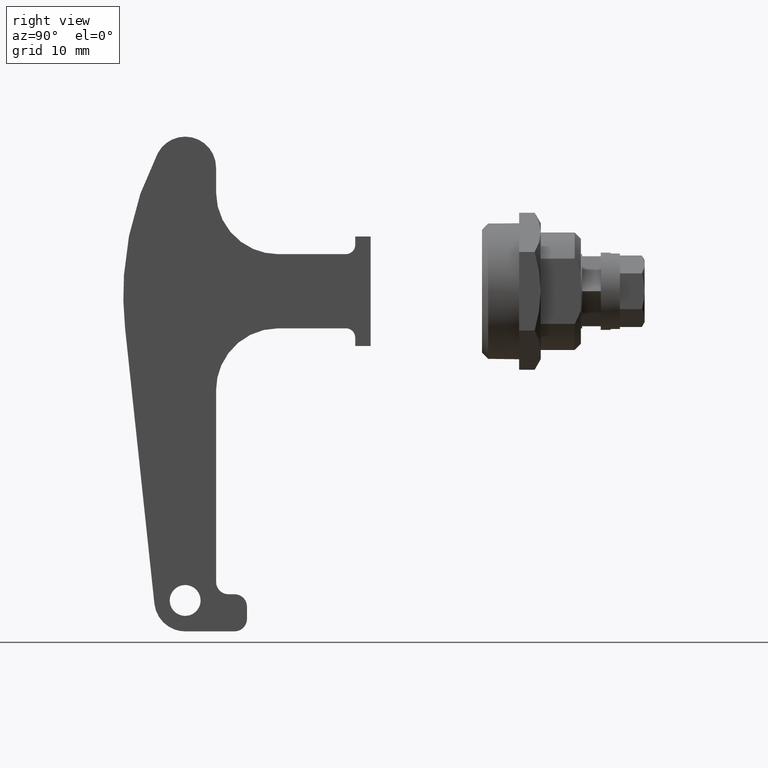
[diagram: clean part render]
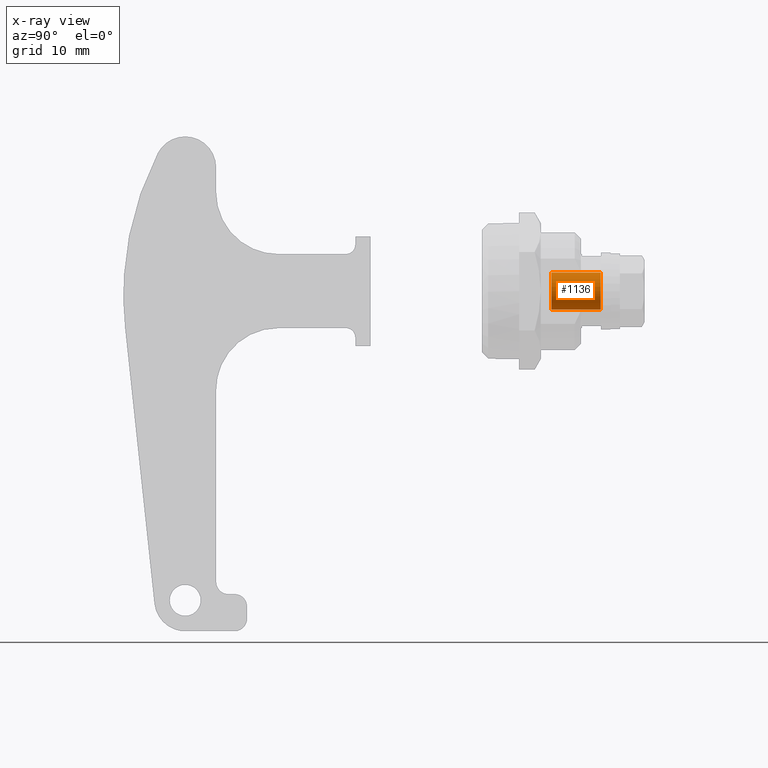
[diagram: x-ray — body ghosted, one internal face saturated and labeled with its STEP entity id]
A machine part, right view, then the same camera in x-ray: the body is ghosted and one INTERNAL B-rep face — a face not visible from any outside direction — is saturated and labeled: STEP entity #1136.
In plain terms, the highlighted face is a freeform B-spline surface patch.
Its self-contained STEP definition (entity closure, byte-faithful):
#1005=CARTESIAN_POINT('',(-1.987860144647212,5.000000000000092,2.246867162367006));
#1006=CARTESIAN_POINT('',(0.259007017719793,5.000000000000092,4.234727307014219));
#1007=CARTESIAN_POINT('',(2.246867162367006,5.000000000000092,1.987860144647212));
#1008=CARTESIAN_POINT('',(4.234727307014219,5.000000000000092,-0.259007017719793));
#1009=CARTESIAN_POINT('',(1.987860144647212,5.000000000000092,-2.246867162367006));
#1010=CARTESIAN_POINT('',(-0.259007017719793,5.000000000000092,-4.234727307014219));
#1011=CARTESIAN_POINT('',(-2.246867162367006,5.000000000000092,-1.987860144647212));
#1012=CARTESIAN_POINT('',(-1.987860144647212,13.404999999999999,2.246867162367006));
#1013=CARTESIAN_POINT('',(0.259007017719793,13.404999999999998,4.234727307014219));
#1014=CARTESIAN_POINT('',(2.246867162367006,13.404999999999999,1.987860144647212));
#1015=CARTESIAN_POINT('',(4.234727307014219,13.404999999999998,-0.259007017719793));
#1016=CARTESIAN_POINT('',(1.987860144647212,13.404999999999999,-2.246867162367006));
#1017=CARTESIAN_POINT('',(-0.259007017719793,13.404999999999998,-4.234727307014219));
#1018=CARTESIAN_POINT('',(-2.246867162367006,13.404999999999999,-1.987860144647212));
#1026=(BOUNDED_SURFACE()B_SPLINE_SURFACE(2,1,((#1005,#1012),(#1006,#1013),(#1007,#1014),(#1008,#1015),(#1009,#1016),(#1010,#1017),(#1011,#1018)),.UNSPECIFIED.,.F.,.F.,.U.)B_SPLINE_SURFACE_WITH_KNOTS((3,2,2,3),(2,2),(0.0,4.970562748477140,9.941125496954280,14.911688245431421),(0.0,8.404999999999905),.UNSPECIFIED.)GEOMETRIC_REPRESENTATION_ITEM()RATIONAL_B_SPLINE_SURFACE(((1.0,1.0),(0.707106781186548,0.707106781186548),(1.0,1.0),(0.707106781186548,0.707106781186548),(1.0,1.0),(0.707106781186548,0.707106781186548),(1.0,1.0)))REPRESENTATION_ITEM('')SURFACE());
#1027=CARTESIAN_POINT('',(0.0,5.200000000000090,3.0));
#1028=VERTEX_POINT('',#1027);
#1029=CARTESIAN_POINT('',(-1.987860304201573,5.199999999999506,2.246867056367915));
#1030=VERTEX_POINT('',#1029);
#1031=CARTESIAN_POINT('',(0.0,5.200000000000090,3.0));
#1032=CARTESIAN_POINT('',(-0.384847648727008,5.199999999999962,3.000431235832744));
#1033=CARTESIAN_POINT('',(-1.108784102411937,5.199999999999798,2.858521661380108));
#1034=CARTESIAN_POINT('',(-1.733701418949567,5.199999999999561,2.472050846698275));
#1035=CARTESIAN_POINT('',(-1.987860304201573,5.199999999999506,2.246867056367915));
#1036=B_SPLINE_CURVE_WITH_KNOTS('',3,(#1031,#1032,#1033,#1034,#1035),.UNSPECIFIED.,.F.,.U.,(4,1,4),(0.000000112098511,1.154359506755691,2.172981494620818),.UNSPECIFIED.);
#1037=EDGE_CURVE('',#1028,#1030,#1036,.T.);
#1038=ORIENTED_EDGE('',*,*,#1037,.T.);
#1039=CARTESIAN_POINT('',(-1.987860302488691,13.199999999999999,2.246867057883345));
#1040=VERTEX_POINT('',#1039);
#1041=CARTESIAN_POINT('',(-1.987860304201573,5.199999999999506,2.246867056367915));
#1042=CARTESIAN_POINT('',(-1.987860302488691,13.199999999999999,2.246867057883345));
#1043=QUASI_UNIFORM_CURVE('',1,(#1041,#1042),.UNSPECIFIED.,.F.,.U.);
#1044=EDGE_CURVE('',#1030,#1040,#1043,.T.);
#1045=ORIENTED_EDGE('',*,*,#1044,.T.);
#1046=CARTESIAN_POINT('',(0.0,13.199999999999999,3.0));
#1047=VERTEX_POINT('',#1046);
#1048=CARTESIAN_POINT('',(0.0,13.199999999999999,3.0));
#1049=CARTESIAN_POINT('',(-0.271623016318482,13.199999999999980,3.000072690067688));
#1050=CARTESIAN_POINT('',(-0.995944712935741,13.200000000000029,2.901037356290163));
#1051=CARTESIAN_POINT('',(-1.649231854430848,13.200000000000029,2.547571807242759));
#1052=CARTESIAN_POINT('',(-1.987860302488691,13.199999999999999,2.246867057883345));
#1053=B_SPLINE_CURVE_WITH_KNOTS('',3,(#1048,#1049,#1050,#1051,#1052),.UNSPECIFIED.,.F.,.U.,(4,1,4),(0.000000112098446,0.814890525723792,2.172981492333645),.UNSPECIFIED.);
#1054=EDGE_CURVE('',#1047,#1040,#1053,.T.);
#1055=ORIENTED_EDGE('',*,*,#1054,.F.);
#1056=CARTESIAN_POINT('',(2.999999999999998,13.199999999999999,-0.000000106132293));
#1057=VERTEX_POINT('',#1056);
#1058=CARTESIAN_POINT('',(2.999999999999998,13.199999999999999,-0.000000106132293));
#1059=CARTESIAN_POINT('',(3.000304668559247,13.199999999999971,0.368182043653055));
#1060=CARTESIAN_POINT('',(2.876426972631413,13.200000000000029,1.030671843817539));
#1061=CARTESIAN_POINT('',(2.362909508773399,13.199999999999990,1.937468838033902));
#1062=CARTESIAN_POINT('',(1.633649011734358,13.199999999999990,2.582368858445260));
#1063=CARTESIAN_POINT('',(0.785386222778752,13.200000000000021,2.933426770790216));
#1064=CARTESIAN_POINT('',(0.245428856928863,13.199999999999960,3.000035744573697));
#1065=CARTESIAN_POINT('',(0.0,13.199999999999999,3.0));
#1066=B_SPLINE_CURVE_WITH_KNOTS('',3,(#1058,#1059,#1060,#1061,#1062,#1063,#1064,#1065),.UNSPECIFIED.,.F.,.U.,(4,1,1,1,1,4),(0.000000498069179,1.104489850091821,1.988154007332405,3.092571405765111,3.976189782492621,4.712507292874045),.UNSPECIFIED.);
#1067=EDGE_CURVE('',#1057,#1047,#1066,.T.);
#1068=ORIENTED_EDGE('',*,*,#1067,.F.);
#1069=CARTESIAN_POINT('',(0.0,13.199999999999999,-3.0));
#1070=VERTEX_POINT('',#1069);
#1071=CARTESIAN_POINT('',(0.0,13.199999999999999,-3.0));
#1072=CARTESIAN_POINT('',(0.417351436072865,13.199999999999990,-3.000531605197468));
#1073=CARTESIAN_POINT('',(1.079544820864258,13.200000000000029,-2.859395986650499));
#1074=CARTESIAN_POINT('',(1.928003535177557,13.199999999999930,-2.350802995631633));
#1075=CARTESIAN_POINT('',(2.520242988311539,13.200000000000250,-1.713476486232647));
#1076=CARTESIAN_POINT('',(2.912559891034084,13.199999999999610,-0.883520529170524));
#1077=CARTESIAN_POINT('',(3.000122776499264,13.200000000000349,-0.294530798122410));
#1078=CARTESIAN_POINT('',(2.999999999999998,13.199999999999999,-0.000000106132293));
#1079=B_SPLINE_CURVE_WITH_KNOTS('',3,(#1071,#1072,#1073,#1074,#1075,#1076,#1077,#1078),.UNSPECIFIED.,.F.,.U.,(4,1,1,1,1,4),(0.000000498213388,1.251764511778396,1.988153956994491,2.945269425892161,3.828930987364925,4.712507173235236),.UNSPECIFIED.);
#1080=EDGE_CURVE('',#1070,#1057,#1079,.T.);
#1081=ORIENTED_EDGE('',*,*,#1080,.F.);
#1082=CARTESIAN_POINT('',(-2.246867018331889,13.199999999999999,-1.987860267705077));
#1083=VERTEX_POINT('',#1082);
#1084=CARTESIAN_POINT('',(-2.246867018331889,13.199999999999999,-1.987860267705077));
#1085=CARTESIAN_POINT('',(-2.036645857296743,13.199999999999990,-2.225729630339730));
#1086=CARTESIAN_POINT('',(-1.560441899336533,13.200000000000021,-2.616642634140351));
#1087=CARTESIAN_POINT('',(-0.767137448129479,13.199999999999999,-2.936772452286814));
#1088=CARTESIAN_POINT('',(-0.238073253567186,13.199999999999999,-3.000039610901093));
#1089=CARTESIAN_POINT('',(0.0,13.199999999999999,-3.0));
#1090=B_SPLINE_CURVE_WITH_KNOTS('',3,(#1084,#1085,#1086,#1087,#1088,#1089),.UNSPECIFIED.,.F.,.U.,(4,1,1,4),(0.000000146757164,0.952323875247716,1.825282017833422,2.539527882661666),.UNSPECIFIED.);
#1091=EDGE_CURVE('',#1083,#1070,#1090,.T.);
#1092=ORIENTED_EDGE('',*,*,#1091,.F.);
#1093=CARTESIAN_POINT('',(-2.246867016816486,5.200000000000699,-1.987860269417928));
#1094=VERTEX_POINT('',#1093);
#1095=CARTESIAN_POINT('',(-2.246867016816486,5.200000000000699,-1.987860269417928));
#1096=CARTESIAN_POINT('',(-2.246867018331889,13.199999999999999,-1.987860267705077));
#1097=QUASI_UNIFORM_CURVE('',1,(#1095,#1096),.UNSPECIFIED.,.F.,.U.);
#1098=EDGE_CURVE('',#1094,#1083,#1097,.T.);
#1099=ORIENTED_EDGE('',*,*,#1098,.F.);
#1100=CARTESIAN_POINT('',(0.0,5.200000000000090,-3.0));
#1101=VERTEX_POINT('',#1100);
#1102=CARTESIAN_POINT('',(-2.246867016816486,5.200000000000699,-1.987860269417928));
#1103=CARTESIAN_POINT('',(-1.984193283094316,5.200000000000628,-2.285350177858453));
#1104=CARTESIAN_POINT('',(-1.295567908460054,5.200000000000434,-2.805807641288163));
#1105=CARTESIAN_POINT('',(-0.449805962208318,5.200000000000219,-3.000738553174732));
#1106=CARTESIAN_POINT('',(0.0,5.200000000000090,-3.0));
#1107=B_SPLINE_CURVE_WITH_KNOTS('',3,(#1102,#1103,#1104,#1105,#1106),.UNSPECIFIED.,.F.,.U.,(4,1,4),(0.000000146757191,1.190436608194356,2.539527880374479),.UNSPECIFIED.);
#1108=EDGE_CURVE('',#1094,#1101,#1107,.T.);
#1109=ORIENTED_EDGE('',*,*,#1108,.T.);
#1110=CARTESIAN_POINT('',(2.999999999999998,5.200000000000091,-0.000000106132293));
#1111=VERTEX_POINT('',#1110);
#1112=CARTESIAN_POINT('',(0.0,5.200000000000090,-3.0));
#1113=CARTESIAN_POINT('',(0.417351435416404,5.200000000000088,-3.000531597607941));
#1114=CARTESIAN_POINT('',(1.079544823008995,5.200000000000097,-2.859396009362569));
#1115=CARTESIAN_POINT('',(1.928003530380436,5.200000000000068,-2.350802950840136));
#1116=CARTESIAN_POINT('',(2.520243003339195,5.200000000000175,-1.713476601855495));
#1117=CARTESIAN_POINT('',(2.912559867476685,5.199999999999959,-0.883520402181182));
#1118=CARTESIAN_POINT('',(3.000122706046831,5.200000000000212,-0.294530708853326));
#1119=CARTESIAN_POINT('',(2.999999999999998,5.200000000000091,-0.000000106132293));
#1120=B_SPLINE_CURVE_WITH_KNOTS('',3,(#1112,#1113,#1114,#1115,#1116,#1117,#1118,#1119),.UNSPECIFIED.,.F.,.U.,(4,1,1,1,1,4),(0.000000498213388,1.251764511778396,1.988153956994491,2.945269425892161,3.828930987364925,4.712507173235236),.UNSPECIFIED.);
#1121=EDGE_CURVE('',#1101,#1111,#1120,.T.);
#1122=ORIENTED_EDGE('',*,*,#1121,.T.);
#1123=CARTESIAN_POINT('',(2.999999999999998,5.200000000000091,-0.000000106132293));
#1124=CARTESIAN_POINT('',(3.000290614748472,5.200000000000080,0.368176425758076));
#1125=CARTESIAN_POINT('',(2.876456005791476,5.200000000000099,1.030685228263239));
#1126=CARTESIAN_POINT('',(2.362887381745765,5.200000000000093,1.937457884710549));
#1127=CARTESIAN_POINT('',(1.633657534387347,5.200000000000076,2.582373465374698));
#1128=CARTESIAN_POINT('',(0.785386461995737,5.200000000000125,2.933425866650052));
#1129=CARTESIAN_POINT('',(0.245427687803650,5.200000000000054,3.000036019949274));
#1130=CARTESIAN_POINT('',(0.0,5.200000000000090,3.0));
#1131=B_SPLINE_CURVE_WITH_KNOTS('',3,(#1123,#1124,#1125,#1126,#1127,#1128,#1129,#1130),.UNSPECIFIED.,.F.,.U.,(4,1,1,1,1,4),(0.000000498069179,1.104489850091821,1.988154007332405,3.092571405765111,3.976189782492621,4.712507292874045),.UNSPECIFIED.);
#1132=EDGE_CURVE('',#1111,#1028,#1131,.T.);
#1133=ORIENTED_EDGE('',*,*,#1132,.T.);
#1134=EDGE_LOOP('',(#1038,#1045,#1055,#1068,#1081,#1092,#1099,#1109,#1122,#1133));
#1135=FACE_OUTER_BOUND('',#1134,.T.);
#1136=ADVANCED_FACE('',(#1135),#1026,.F.);